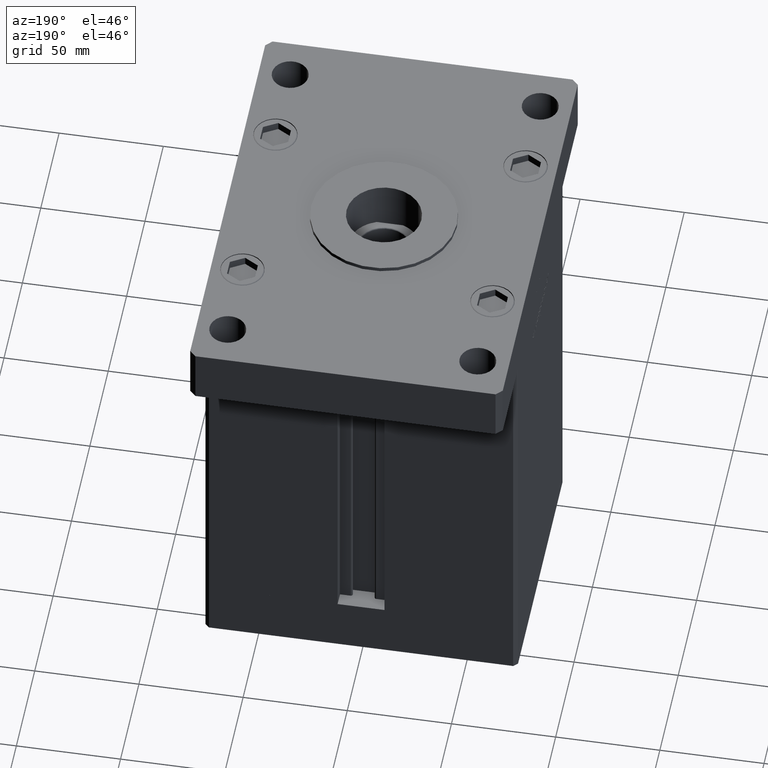
[diagram: clean part render]
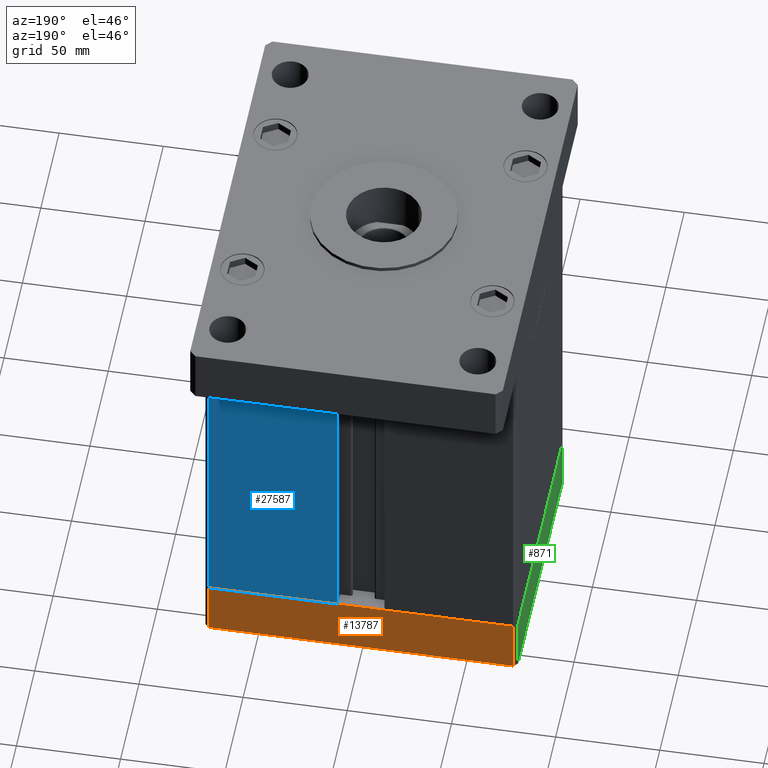
[diagram: same view with three faces highlighted in distinct colors, each labeled with its STEP entity id]
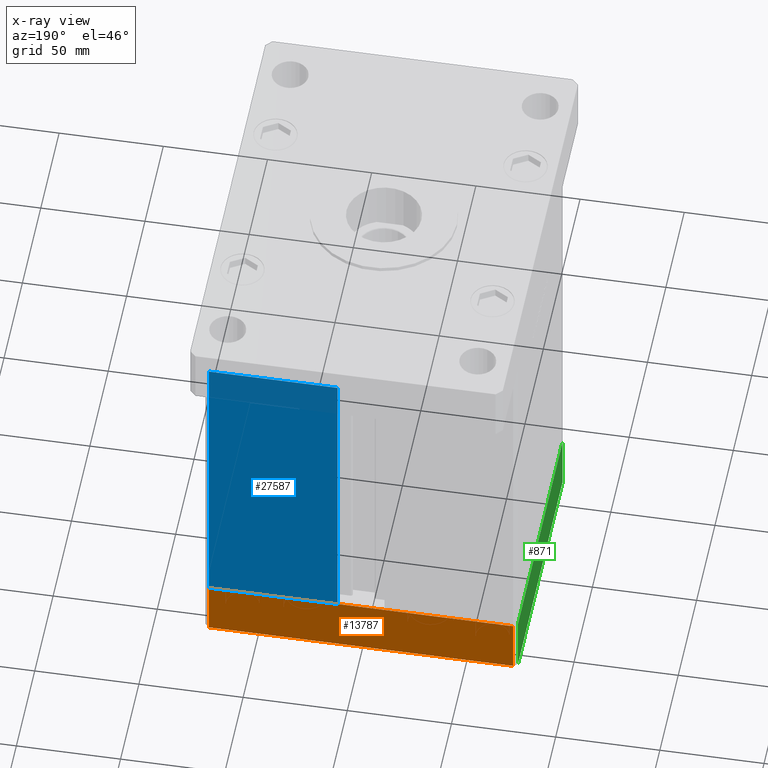
[diagram: x-ray of the same camera — body ghosted, the three highlighted faces saturated]
A machine part, auxiliary view with three faces highlighted in distinct colors.
The next image is the same camera in x-ray (body ghosted, the three faces saturated) — at least one of them is partly hidden behind the body in this view.
Their STEP definitions:

[orange] entity #13787 — the highlighted planar face has unit normal (0, 1, 0).
#3124 = CARTESIAN_POINT ( 'NONE',  ( 72.99999999999992895, 62.50000000000001421, -27.00000000000000000 ) ) ;
#4972 = VECTOR ( 'NONE', #23255, 1000.000000000000000 ) ;
#6143 = LINE ( 'NONE', #26696, #30545 ) ;
#6627 = EDGE_CURVE ( 'NONE', #37394, #13284, #23783, .T. ) ;
#8318 = CARTESIAN_POINT ( 'NONE',  ( 72.99999999999992895, 62.50000000000001421, -27.00000000000000000 ) ) ;
#9267 = CARTESIAN_POINT ( 'NONE',  ( 72.99999999999992895, 62.50000000000001421, -27.00000000000000000 ) ) ;
#10184 = PLANE ( 'NONE',  #23337 ) ;
#10969 = DIRECTION ( 'NONE',  ( -1.000000000000000000, -1.901066822988282689E-16, 0.000000000000000000 ) ) ;
#13229 = CARTESIAN_POINT ( 'NONE',  ( 72.99999999999992895, 62.50000000000001421, 0.000000000000000000 ) ) ;
#13284 = VERTEX_POINT ( 'NONE', #50451 ) ;
#13410 = CARTESIAN_POINT ( 'NONE',  ( -73.00000000000001421, 62.49999999999998579, -27.00000000000000000 ) ) ;
#13787 = ADVANCED_FACE ( 'NONE', ( #27740 ), #10184, .T. ) ;
#15953 = EDGE_LOOP ( 'NONE', ( #27377, #48526, #45562, #49058 ) ) ;
#18834 = VERTEX_POINT ( 'NONE', #8318 ) ;
#21424 = DIRECTION ( 'NONE',  ( 0.000000000000000000, 0.000000000000000000, 1.000000000000000000 ) ) ;
#23255 = DIRECTION ( 'NONE',  ( 0.000000000000000000, 0.000000000000000000, 1.000000000000000000 ) ) ;
#23337 = AXIS2_PLACEMENT_3D ( 'NONE', #3124, #48352, #36147 ) ;
#23783 = LINE ( 'NONE', #52259, #4972 ) ;
#25118 = VERTEX_POINT ( 'NONE', #13229 ) ;
#26696 = CARTESIAN_POINT ( 'NONE',  ( 72.99999999999992895, 62.50000000000001421, -27.00000000000000000 ) ) ;
#26955 = LINE ( 'NONE', #43221, #41909 ) ;
#27162 = EDGE_CURVE ( 'NONE', #18834, #37394, #6143, .T. ) ;
#27377 = ORIENTED_EDGE ( 'NONE', *, *, #31087, .F. ) ;
#27740 = FACE_OUTER_BOUND ( 'NONE', #15953, .T. ) ;
#30545 = VECTOR ( 'NONE', #43237, 1000.000000000000000 ) ;
#31087 = EDGE_CURVE ( 'NONE', #25118, #13284, #26955, .T. ) ;
#33584 = VECTOR ( 'NONE', #21424, 1000.000000000000000 ) ;
#36147 = DIRECTION ( 'NONE',  ( -1.000000000000000000, -1.901066822988282936E-16, 0.000000000000000000 ) ) ;
#37394 = VERTEX_POINT ( 'NONE', #13410 ) ;
#41909 = VECTOR ( 'NONE', #10969, 1000.000000000000000 ) ;
#43221 = CARTESIAN_POINT ( 'NONE',  ( 72.99999999999992895, 62.50000000000001421, 0.000000000000000000 ) ) ;
#43237 = DIRECTION ( 'NONE',  ( -1.000000000000000000, -1.901066822988282689E-16, 0.000000000000000000 ) ) ;
#45562 = ORIENTED_EDGE ( 'NONE', *, *, #27162, .T. ) ;
#46505 = EDGE_CURVE ( 'NONE', #18834, #25118, #46922, .T. ) ;
#46922 = LINE ( 'NONE', #9267, #33584 ) ;
#48352 = DIRECTION ( 'NONE',  ( -1.901066822988282936E-16, 1.000000000000000000, 0.000000000000000000 ) ) ;
#48526 = ORIENTED_EDGE ( 'NONE', *, *, #46505, .F. ) ;
#49058 = ORIENTED_EDGE ( 'NONE', *, *, #6627, .T. ) ;
#50451 = CARTESIAN_POINT ( 'NONE',  ( -73.00000000000001421, 62.49999999999998579, 0.000000000000000000 ) ) ;
#52259 = CARTESIAN_POINT ( 'NONE',  ( -73.00000000000001421, 62.49999999999998579, -27.00000000000000000 ) ) ;

[blue] entity #27587 — the highlighted planar face has unit normal (-0, -1, 0).
#28 = LINE ( 'NONE', #28722, #53223 ) ;
#497 = VERTEX_POINT ( 'NONE', #3552 ) ;
#849 = VERTEX_POINT ( 'NONE', #24843 ) ;
#2342 = CARTESIAN_POINT ( 'NONE',  ( 73.00000000000001421, 62.50000000000000000, 0.000000000000000000 ) ) ;
#2755 = VECTOR ( 'NONE', #43037, 1000.000000000000000 ) ;
#3552 = CARTESIAN_POINT ( 'NONE',  ( 73.00000000000001421, 62.50000000000000000, 147.0000000000000000 ) ) ;
#6924 = CARTESIAN_POINT ( 'NONE',  ( 11.24999999999999467, 62.49999999999999289, 147.0000000000000000 ) ) ;
#9279 = ORIENTED_EDGE ( 'NONE', *, *, #37073, .T. ) ;
#9461 = EDGE_CURVE ( 'NONE', #9932, #849, #50106, .T. ) ;
#9932 = VERTEX_POINT ( 'NONE', #2342 ) ;
#12413 = CARTESIAN_POINT ( 'NONE',  ( -11.25000000000000178, 62.49999999999999289, 147.0000000000000000 ) ) ;
#15969 = ORIENTED_EDGE ( 'NONE', *, *, #19249, .T. ) ;
#18928 = VERTEX_POINT ( 'NONE', #6924 ) ;
#19249 = EDGE_CURVE ( 'NONE', #849, #18928, #51461, .T. ) ;
#19982 = DIRECTION ( 'NONE',  ( -1.123707514802790025E-16, -1.000000000000000000, 0.000000000000000000 ) ) ;
#23523 = EDGE_LOOP ( 'NONE', ( #32327, #15969, #31787, #9279 ) ) ;
#24325 = FACE_OUTER_BOUND ( 'NONE', #23523, .T. ) ;
#24843 = CARTESIAN_POINT ( 'NONE',  ( 11.25000000000000178, 62.49999999999999289, 0.000000000000000000 ) ) ;
#25107 = CARTESIAN_POINT ( 'NONE',  ( -11.25000000000000178, 62.49999999999999289, 147.0000000000000000 ) ) ;
#27587 = ADVANCED_FACE ( 'NONE', ( #24325 ), #49540, .F. ) ;
#28366 = VECTOR ( 'NONE', #29229, 1000.000000000000000 ) ;
#28722 = CARTESIAN_POINT ( 'NONE',  ( 73.00000000000001421, 62.50000000000000000, 147.0000000000000000 ) ) ;
#29229 = DIRECTION ( 'NONE',  ( -1.000000000000000000, 1.123707514802790025E-16, 0.000000000000000000 ) ) ;
#29503 = CARTESIAN_POINT ( 'NONE',  ( 11.25000000000000178, 62.49999999999999289, 0.000000000000000000 ) ) ;
#31787 = ORIENTED_EDGE ( 'NONE', *, *, #51608, .T. ) ;
#32327 = ORIENTED_EDGE ( 'NONE', *, *, #9461, .T. ) ;
#37035 = DIRECTION ( 'NONE',  ( 1.000000000000000000, 0.000000000000000000, 0.000000000000000000 ) ) ;
#37073 = EDGE_CURVE ( 'NONE', #497, #9932, #28, .T. ) ;
#37902 = CARTESIAN_POINT ( 'NONE',  ( -11.25000000000000178, 62.49999999999999289, 0.000000000000000000 ) ) ;
#40932 = AXIS2_PLACEMENT_3D ( 'NONE', #12413, #19982, #44400 ) ;
#43037 = DIRECTION ( 'NONE',  ( -0.000000000000000000, -0.000000000000000000, 1.000000000000000000 ) ) ;
#44400 = DIRECTION ( 'NONE',  ( 1.000000000000000000, -1.123707514802790025E-16, 0.000000000000000000 ) ) ;
#48974 = LINE ( 'NONE', #25107, #51057 ) ;
#49540 = PLANE ( 'NONE',  #40932 ) ;
#50106 = LINE ( 'NONE', #37902, #28366 ) ;
#50135 = DIRECTION ( 'NONE',  ( -0.000000000000000000, -0.000000000000000000, -1.000000000000000000 ) ) ;
#51057 = VECTOR ( 'NONE', #37035, 1000.000000000000000 ) ;
#51461 = LINE ( 'NONE', #29503, #2755 ) ;
#51608 = EDGE_CURVE ( 'NONE', #18928, #497, #48974, .T. ) ;
#53223 = VECTOR ( 'NONE', #50135, 1000.000000000000000 ) ;

[green] entity #871 — the highlighted planar face has unit normal (-1, 0, 0).
#733 = LINE ( 'NONE', #50028, #47580 ) ;
#765 = DIRECTION ( 'NONE',  ( 1.000000000000000000, 6.881547673296424104E-16, -0.000000000000000000 ) ) ;
#871 = ADVANCED_FACE ( 'NONE', ( #8089 ), #45446, .T. ) ;
#3049 = EDGE_CURVE ( 'NONE', #46064, #44509, #733, .T. ) ;
#3981 = LINE ( 'NONE', #53536, #51824 ) ;
#5059 = CARTESIAN_POINT ( 'NONE',  ( 74.99999999999992895, 60.50000000000002842, 0.000000000000000000 ) ) ;
#5425 = DIRECTION ( 'NONE',  ( -6.881547673296424104E-16, 1.000000000000000000, 0.000000000000000000 ) ) ;
#7240 = DIRECTION ( 'NONE',  ( 0.000000000000000000, 0.000000000000000000, 1.000000000000000000 ) ) ;
#8089 = FACE_OUTER_BOUND ( 'NONE', #11752, .T. ) ;
#10891 = VECTOR ( 'NONE', #5425, 1000.000000000000000 ) ;
#11752 = EDGE_LOOP ( 'NONE', ( #26803, #23589, #31994, #25006 ) ) ;
#17221 = DIRECTION ( 'NONE',  ( -6.881547673296424104E-16, 1.000000000000000000, 0.000000000000000000 ) ) ;
#23589 = ORIENTED_EDGE ( 'NONE', *, *, #39874, .F. ) ;
#25006 = ORIENTED_EDGE ( 'NONE', *, *, #44402, .T. ) ;
#25592 = VERTEX_POINT ( 'NONE', #29556 ) ;
#26803 = ORIENTED_EDGE ( 'NONE', *, *, #3049, .F. ) ;
#29556 = CARTESIAN_POINT ( 'NONE',  ( 74.99999999999992895, 60.50000000000002842, -27.00000000000000000 ) ) ;
#31994 = ORIENTED_EDGE ( 'NONE', *, *, #35151, .T. ) ;
#32393 = CARTESIAN_POINT ( 'NONE',  ( 75.00000000000001421, -60.50000000000000711, -27.00000000000000000 ) ) ;
#32978 = CARTESIAN_POINT ( 'NONE',  ( 75.00000000000001421, -60.50000000000000711, -27.00000000000000000 ) ) ;
#33743 = DIRECTION ( 'NONE',  ( 0.000000000000000000, 0.000000000000000000, 1.000000000000000000 ) ) ;
#34376 = VECTOR ( 'NONE', #7240, 1000.000000000000000 ) ;
#35151 = EDGE_CURVE ( 'NONE', #36709, #25592, #41431, .T. ) ;
#36197 = LINE ( 'NONE', #32393, #34376 ) ;
#36709 = VERTEX_POINT ( 'NONE', #45049 ) ;
#38368 = AXIS2_PLACEMENT_3D ( 'NONE', #32978, #765, #45191 ) ;
#39874 = EDGE_CURVE ( 'NONE', #36709, #46064, #36197, .T. ) ;
#41431 = LINE ( 'NONE', #41711, #10891 ) ;
#41711 = CARTESIAN_POINT ( 'NONE',  ( 75.00000000000001421, -60.50000000000000711, -27.00000000000000000 ) ) ;
#44402 = EDGE_CURVE ( 'NONE', #25592, #44509, #3981, .T. ) ;
#44509 = VERTEX_POINT ( 'NONE', #5059 ) ;
#45049 = CARTESIAN_POINT ( 'NONE',  ( 75.00000000000001421, -60.50000000000000711, -27.00000000000000000 ) ) ;
#45191 = DIRECTION ( 'NONE',  ( -6.881547673296424104E-16, 1.000000000000000000, 0.000000000000000000 ) ) ;
#45446 = PLANE ( 'NONE',  #38368 ) ;
#46064 = VERTEX_POINT ( 'NONE', #48164 ) ;
#47580 = VECTOR ( 'NONE', #17221, 1000.000000000000000 ) ;
#48164 = CARTESIAN_POINT ( 'NONE',  ( 75.00000000000001421, -60.50000000000000711, 0.000000000000000000 ) ) ;
#50028 = CARTESIAN_POINT ( 'NONE',  ( 75.00000000000001421, -60.50000000000000711, 0.000000000000000000 ) ) ;
#51824 = VECTOR ( 'NONE', #33743, 1000.000000000000000 ) ;
#53536 = CARTESIAN_POINT ( 'NONE',  ( 74.99999999999992895, 60.50000000000002842, -27.00000000000000000 ) ) ;